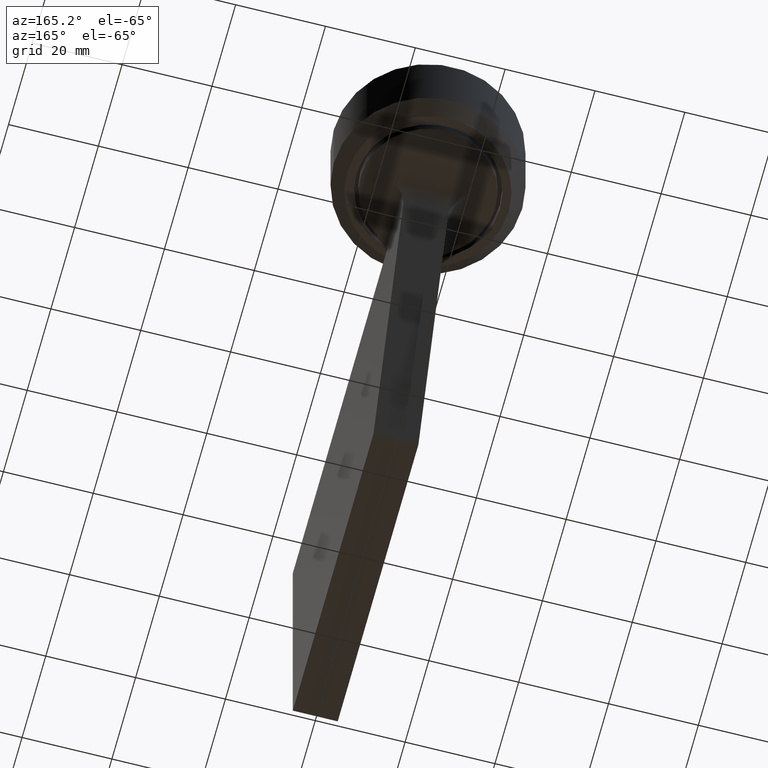
[diagram: clean part render]
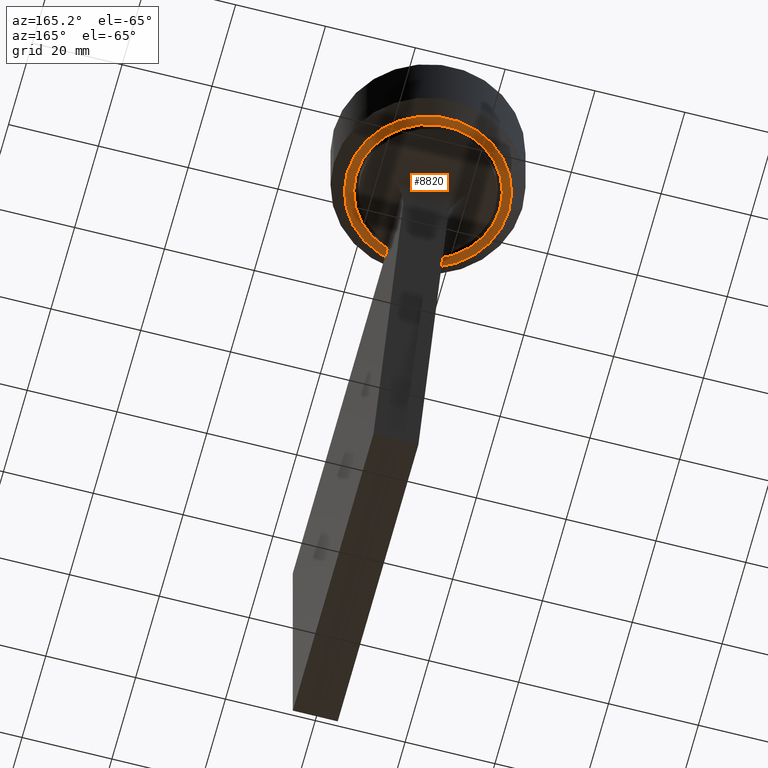
[diagram: same view with one face highlighted and labeled with its STEP entity id]
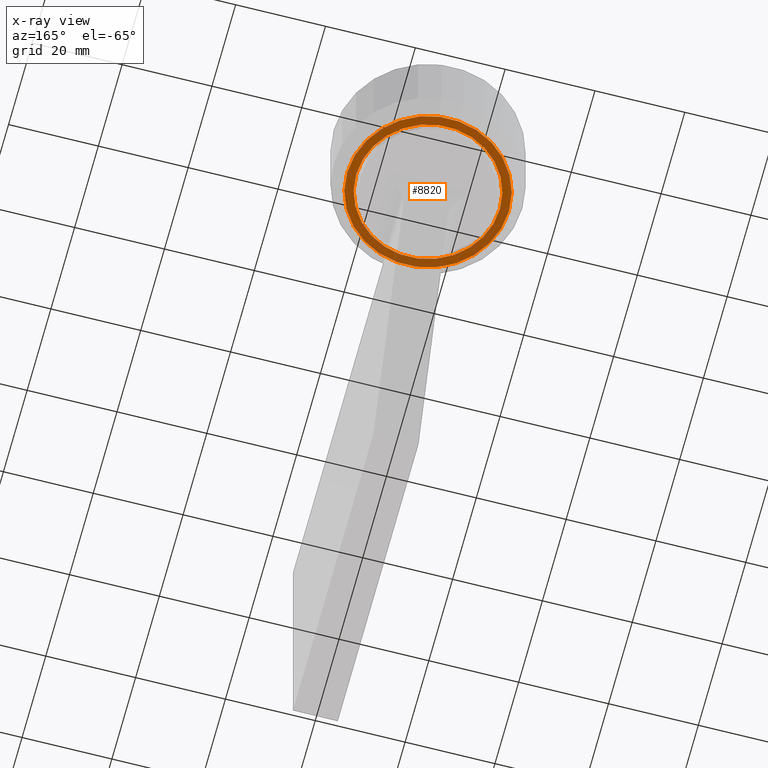
[diagram: x-ray of the same camera — body ghosted, the highlighted face saturated]
A machine part, auxiliary view. The second image highlights one B-rep face of the part: STEP entity #8820.
The next image is the same camera in x-ray: the body ghosted, the highlighted face saturated — about 10% of this face is hidden behind the body in this view.
In plain terms, the highlighted planar face has unit normal (0, 0, 1).
Its self-contained STEP definition (entity closure, byte-faithful):
#89 = EDGE_CURVE ( 'NONE', #7000, #9292, #8592, .T. ) ;
#233 = CARTESIAN_POINT ( 'NONE',  ( 0.000000000000000000, 21.00000000000000000, -28.00000000000000355 ) ) ;
#696 = CARTESIAN_POINT ( 'NONE',  ( 17.99999999999998224, 0.000000000000000000, -28.00000000000000355 ) ) ;
#1127 = DIRECTION ( 'NONE',  ( 1.000000000000000000, 0.000000000000000000, 0.000000000000000000 ) ) ;
#1240 = CARTESIAN_POINT ( 'NONE',  ( 0.000000000000000000, 0.000000000000000000, -28.00000000000000355 ) ) ;
#1355 = DIRECTION ( 'NONE',  ( 0.000000000000000000, 0.000000000000000000, -1.000000000000000000 ) ) ;
#1653 = EDGE_LOOP ( 'NONE', ( #4879, #1750 ) ) ;
#1750 = ORIENTED_EDGE ( 'NONE', *, *, #8882, .T. ) ;
#3020 = DIRECTION ( 'NONE',  ( 1.000000000000000000, 0.000000000000000000, 0.000000000000000000 ) ) ;
#3454 = DIRECTION ( 'NONE',  ( -0.000000000000000000, -0.000000000000000000, 1.000000000000000000 ) ) ;
#3501 = VERTEX_POINT ( 'NONE', #11701 ) ;
#3615 = EDGE_CURVE ( 'NONE', #9292, #7000, #6224, .T. ) ;
#3960 = CARTESIAN_POINT ( 'NONE',  ( 0.000000000000000000, 0.000000000000000000, -28.00000000000000355 ) ) ;
#4390 = DIRECTION ( 'NONE',  ( 1.000000000000000000, 0.000000000000000000, 0.000000000000000000 ) ) ;
#4482 = EDGE_CURVE ( 'NONE', #9241, #3501, #8680, .T. ) ;
#4604 = CIRCLE ( 'NONE', #7650, 16.00000000000000000 ) ;
#4879 = ORIENTED_EDGE ( 'NONE', *, *, #4482, .T. ) ;
#4890 = EDGE_LOOP ( 'NONE', ( #10838, #8351 ) ) ;
#5888 = CARTESIAN_POINT ( 'NONE',  ( 0.000000000000000000, 0.000000000000000000, -28.00000000000000355 ) ) ;
#6224 = CIRCLE ( 'NONE', #10170, 17.99999999999998224 ) ;
#6735 = PLANE ( 'NONE',  #8930 ) ;
#7000 = VERTEX_POINT ( 'NONE', #10503 ) ;
#7040 = CARTESIAN_POINT ( 'NONE',  ( 16.00000000000000000, 0.000000000000000000, -28.00000000000000355 ) ) ;
#7161 = CARTESIAN_POINT ( 'NONE',  ( 0.000000000000000000, 0.000000000000000000, -28.00000000000000355 ) ) ;
#7374 = FACE_BOUND ( 'NONE', #1653, .T. ) ;
#7650 = AXIS2_PLACEMENT_3D ( 'NONE', #5888, #8614, #3020 ) ;
#8276 = AXIS2_PLACEMENT_3D ( 'NONE', #7161, #3454, #4390 ) ;
#8351 = ORIENTED_EDGE ( 'NONE', *, *, #89, .T. ) ;
#8592 = CIRCLE ( 'NONE', #9530, 17.99999999999998224 ) ;
#8614 = DIRECTION ( 'NONE',  ( -0.000000000000000000, -0.000000000000000000, 1.000000000000000000 ) ) ;
#8680 = CIRCLE ( 'NONE', #8276, 16.00000000000000000 ) ;
#8820 = ADVANCED_FACE ( 'NONE', ( #9612, #7374 ), #6735, .F. ) ;
#8882 = EDGE_CURVE ( 'NONE', #3501, #9241, #4604, .T. ) ;
#8930 = AXIS2_PLACEMENT_3D ( 'NONE', #233, #11472, #1127 ) ;
#9241 = VERTEX_POINT ( 'NONE', #7040 ) ;
#9292 = VERTEX_POINT ( 'NONE', #696 ) ;
#9530 = AXIS2_PLACEMENT_3D ( 'NONE', #1240, #1355, #11621 ) ;
#9612 = FACE_OUTER_BOUND ( 'NONE', #4890, .T. ) ;
#10170 = AXIS2_PLACEMENT_3D ( 'NONE', #3960, #11440, #10493 ) ;
#10493 = DIRECTION ( 'NONE',  ( 1.000000000000000000, 0.000000000000000000, 0.000000000000000000 ) ) ;
#10503 = CARTESIAN_POINT ( 'NONE',  ( -17.99999999999998224, 2.388061258337337361E-15, -28.00000000000000355 ) ) ;
#10838 = ORIENTED_EDGE ( 'NONE', *, *, #3615, .T. ) ;
#11440 = DIRECTION ( 'NONE',  ( 0.000000000000000000, 0.000000000000000000, -1.000000000000000000 ) ) ;
#11472 = DIRECTION ( 'NONE',  ( 0.000000000000000000, -0.000000000000000000, 1.000000000000000000 ) ) ;
#11621 = DIRECTION ( 'NONE',  ( 1.000000000000000000, 0.000000000000000000, 0.000000000000000000 ) ) ;
#11701 = CARTESIAN_POINT ( 'NONE',  ( -16.00000000000000000, 1.959434878635765131E-15, -28.00000000000000355 ) ) ;